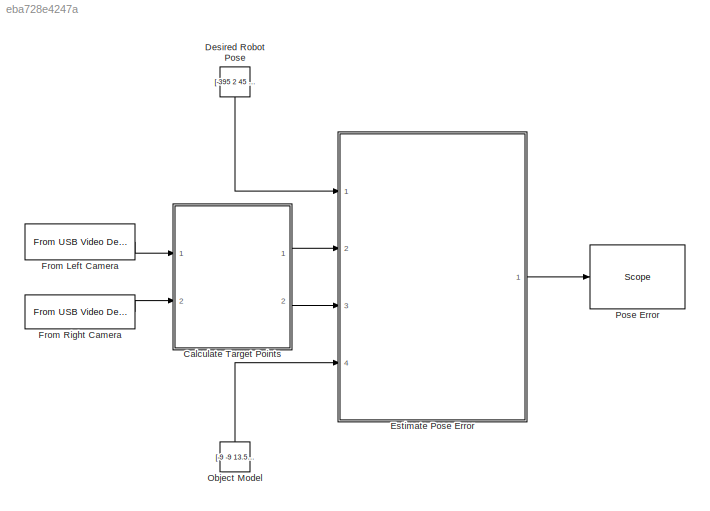
MODEL slx_eba728e4247a
KIND model
CONFIG AbsTol = auto
CONFIG FixedStep = 0.2
CONFIG MaxStep = auto
CONFIG MinStep = auto
CONFIG RelTol = 1e-3
CONFIG SampleTimeConstraint = Unconstrained
CONFIG Solver = FixedStepDiscrete
CONFIG SolverMode = Auto
CONFIG SolverName = FixedStepDiscrete
CONFIG StartTime = 0.0
CONFIG StopTime = 10.0
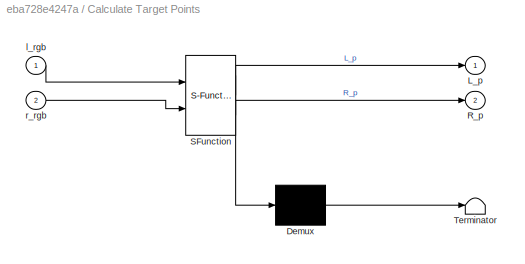
BLOCK [SubSystem] Calculate Target Points
  ErrorFcn = Stateflow.Translate.translate
  PermitHierarchicalResolution = ExplicitOnly
  Ports = [2, 2]
  RequestExecContextInheritance = off
  SFBlockType = MATLAB Function
  TreatAsAtomicUnit = on
BLOCK [Demux] Calculate Target Points/ Demux 
  Outputs = 1
  Ports = [1, 1]
BLOCK [S-Function] Calculate Target Points/ SFunction 
  EnableBusSupport = on
  FunctionName = sf_sfun
  PortCounts = [2 3]
  Ports = [2, 3]
  Tag = Stateflow S-Function mirageTrackingRobot 2
BLOCK [Terminator] Calculate Target Points/ Terminator 
BLOCK [Outport] Calculate Target Points/L_p
  IconDisplay = Port number
BLOCK [Outport] Calculate Target Points/R_p
  IconDisplay = Port number
  Port = 2
BLOCK [Inport] Calculate Target Points/l_rgb
  IconDisplay = Port number
BLOCK [Inport] Calculate Target Points/r_rgb
  IconDisplay = Port number
  Port = 2
BLOCK [Constant] Desired Robot Pose
  Value = [-395 2 45 0 0 0]
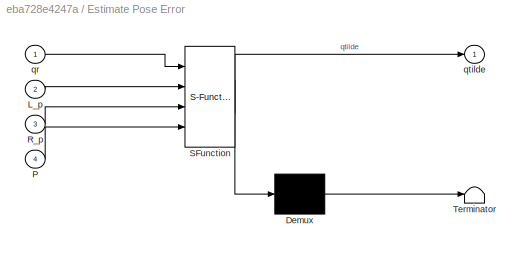
BLOCK [SubSystem] Estimate Pose Error
  ErrorFcn = Stateflow.Translate.translate
  PermitHierarchicalResolution = ExplicitOnly
  Ports = [4, 1]
  RequestExecContextInheritance = off
  SFBlockType = MATLAB Function
  TreatAsAtomicUnit = on
BLOCK [Demux] Estimate Pose Error/ Demux 
  Outputs = 1
  Ports = [1, 1]
BLOCK [S-Function] Estimate Pose Error/ SFunction 
  EnableBusSupport = on
  FunctionName = sf_sfun
  PortCounts = [4 2]
  Ports = [4, 2]
  Tag = Stateflow S-Function mirageTrackingRobot 3
BLOCK [Terminator] Estimate Pose Error/ Terminator 
BLOCK [Inport] Estimate Pose Error/L_p
  IconDisplay = Port number
  Port = 2
BLOCK [Inport] Estimate Pose Error/P
  IconDisplay = Port number
  Port = 4
BLOCK [Inport] Estimate Pose Error/R_p
  IconDisplay = Port number
  Port = 3
BLOCK [Inport] Estimate Pose Error/qr
  IconDisplay = Port number
BLOCK [Outport] Estimate Pose Error/qtilde
  IconDisplay = Port number
BLOCK [Reference] From Left Camera  REF=xpcvideousblib/From USB Video Device
  Ports = [0, 1]
  SourceBlock = xpcvideousblib/From USB Video Device
  SourceType = xpcvideousb
  cfmt = RGB24 (8:8:8)
  ffmt = Uncompressed
  fint = 1/5
  iheight = 960
  isig = One multidimensional signal
  iwidth = 1280
  paddr = -1
  sconf = <Select a configuration>
  status = off
  trigger = off
  updateBlock = 1
BLOCK [Reference] From Right Camera  REF=xpcvideousblib/From USB Video Device
  Ports = [0, 1]
  SourceBlock = xpcvideousblib/From USB Video Device
  SourceType = xpcvideousb
  cfmt = RGB24 (8:8:8)
  ffmt = Uncompressed
  fint = 1/5
  iheight = 960
  isig = One multidimensional signal
  iwidth = 1280
  paddr = -1
  sconf = <Select a configuration>
  status = off
  trigger = off
  updateBlock = 1
BLOCK [Constant] Object Model
  Value = [-9 -9 13.5 0; 12.75 -12.75 0 0; 2 1.75 2 22.5; 1 1 1 1]
BLOCK [Reference] Pose Error   REF=slrtlib/Displays and
Logging/Scope 
  Ports = [1]
  SourceBlock = slrtlib/Displays and\nLogging/Scope
  SourceType = xpcscopeblock
  autorestart = off
  autostart = on
  dynamicfilemode = off
  filename = data.dat
  formatstr = '%15.6f'
  grid = on
  interleave = 1
  maxwritefilesize = 512*1024^2
  mode = Lazy
  noprepostsamples = 0
  nosamples = 3
  scopeno = 1
  scopetype = Target
  triggerlevel = 0.0
  triggermode = FreeRun
  triggersample = 0
  triggerscope = 1
  triggersignal = 1
  triggerslope = Either
  trigsignalfromport = off
  viewmode = Graphical redraw
  writesize = 512
  ylimits = [0,0]
LINE Calculate Target Points:1 -> Estimate Pose Error:2
LINE Calculate Target Points:2 -> Estimate Pose Error:3
LINE Desired Robot Pose:1 -> Estimate Pose Error:1
LINE Estimate Pose Error:1 -> Pose Error :1
LINE From Left Camera:1 -> Calculate Target Points:1
LINE From Right Camera:1 -> Calculate Target Points:2
LINE Object Model:1 -> Estimate Pose Error:4
CHART Calculate Target Points states=1 transitions=1
  STATE_LABEL 'eML_blk_kernel()'
  STATE_LABEL 'SCRIPT:\nfunction [L_p, R_p] = getCenter(l_rgb,r_rgb)\n\n    %#codegen\n    L_p=zeros(2,4);\n    R_p=zeros(2,4);\n    \n    %input left image(l_rgb), right image(r_rgb), Pose target position \n    [m,n,c]=size(l_rgb);\n    \n    %define image variables for processing\n    l_gray=zeros(m,n);      r_gray=zeros(m,n);\n    l_rgb1=zeros(m,n,c);    r_rgb1=zeros(m,n,c);\n    l_rgb2=zeros(m,n);      r_rgb2=zeros(m,n);...<+1865ch>'
CHART Estimate Pose Error states=1 transitions=1
  STATE_LABEL 'eML_blk_kernel()'
  STATE_LABEL 'SCRIPT:\nfunction qtilde = mirage(qr,L_p,R_p,P)\n%#codegen\n\n%Desired Robot Pose for current step qr()\nrobotPoseDes.x = qr(1);\nrobotPoseDes.y = qr(2);\nrobotPoseDes.z = qr(3);\nrobotPoseDes.phi = qr(4);\nrobotPoseDes.theta = qr(5);\nrobotPoseDes.psi = qr(6);\n\n%Transform target points from I space into Desired Robot Space\nworld2robotDes = inv(EulerTrans(robotPoseDes));\nS_PDes = world2robotDes*P;\n\n%Calcula...<+549ch>'
